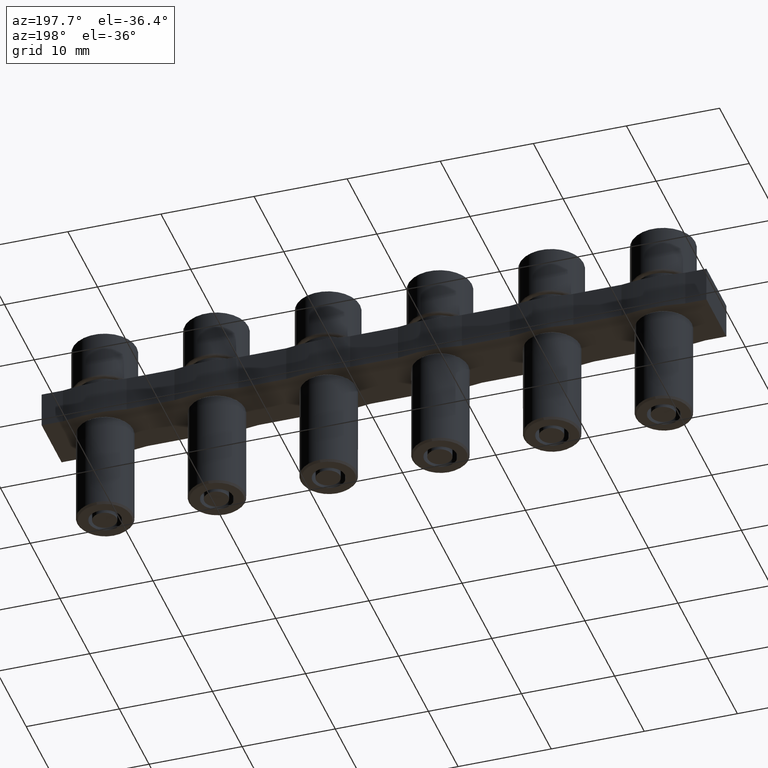
[diagram: clean part render]
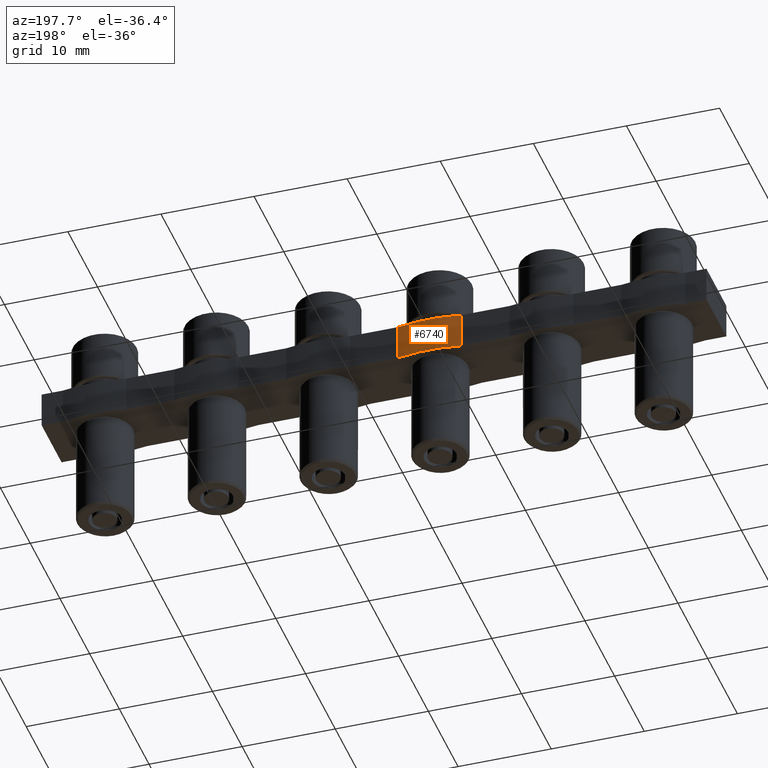
[diagram: same view with one face highlighted and labeled with its STEP entity id]
A machine part, auxiliary view. The second image highlights one B-rep face of the part: STEP entity #6740.
In plain terms, the highlighted cylindrical surface (partial cylindrical patch) has radius 16.95 mm, axis along (0, 0, 1).
Its self-contained STEP definition (entity closure, byte-faithful):
#46 = AXIS2_PLACEMENT_3D ( 'NONE', #8231, #8252, #8228 ) ;
#994 = FACE_OUTER_BOUND ( 'NONE', #3298, .T. ) ;
#1525 = CARTESIAN_POINT ( 'NONE',  ( -27.42673313813508100, 3.350000000000080000, -4.800000000000001600 ) ) ;
#1544 = CARTESIAN_POINT ( 'NONE',  ( -27.42673313813508100, 3.350000000000080000, -0.9000000000000014700 ) ) ;
#1599 = CARTESIAN_POINT ( 'NONE',  ( -20.57326686186491900, 3.350000000000080900, -0.9000000000000014700 ) ) ;
#1606 = CARTESIAN_POINT ( 'NONE',  ( -20.57326686186491900, 3.350000000000080000, -4.800000000000001600 ) ) ;
#2164 = CARTESIAN_POINT ( 'NONE',  ( -23.99999999999999600, -13.25000000000035000, -0.9000000000000014700 ) ) ;
#2275 = DIRECTION ( 'NONE',  ( -0.0000000000000000000, -0.0000000000000000000, -1.000000000000000000 ) ) ;
#2341 = DIRECTION ( 'NONE',  ( 1.000000000000000000, 0.0000000000000000000, 0.0000000000000000000 ) ) ;
#2350 = DIRECTION ( 'NONE',  ( -0.0000000000000000000, -0.0000000000000000000, -1.000000000000000000 ) ) ;
#2354 = CARTESIAN_POINT ( 'NONE',  ( -23.99999999999999600, -13.25000000000035000, -4.800000000000001600 ) ) ;
#3298 = EDGE_LOOP ( 'NONE', ( #4176, #4215, #4197, #4169 ) ) ;
#4169 = ORIENTED_EDGE ( 'NONE', *, *, #5570, .F. ) ;
#4176 = ORIENTED_EDGE ( 'NONE', *, *, #5896, .T. ) ;
#4197 = ORIENTED_EDGE ( 'NONE', *, *, #5689, .T. ) ;
#4215 = ORIENTED_EDGE ( 'NONE', *, *, #5590, .T. ) ;
#4628 = VERTEX_POINT ( 'NONE', #1544 ) ;
#4656 = VERTEX_POINT ( 'NONE', #1525 ) ;
#4692 = VERTEX_POINT ( 'NONE', #1599 ) ;
#4704 = VERTEX_POINT ( 'NONE', #1606 ) ;
#5410 = LINE ( 'NONE', #5500, #7289 ) ;
#5500 = CARTESIAN_POINT ( 'NONE',  ( -20.57326686186491900, 3.350000000000080900, -0.9000000000000014700 ) ) ;
#5506 = DIRECTION ( 'NONE',  ( -0.0000000000000000000, -0.0000000000000000000, -1.000000000000000000 ) ) ;
#5570 = EDGE_CURVE ( 'NONE', #4656, #4704, #7209, .T. ) ;
#5590 = EDGE_CURVE ( 'NONE', #4628, #4692, #7216, .T. ) ;
#5689 = EDGE_CURVE ( 'NONE', #4692, #4704, #5410, .T. ) ;
#5896 = EDGE_CURVE ( 'NONE', #4656, #4628, #6402, .T. ) ;
#6372 = CARTESIAN_POINT ( 'NONE',  ( -27.42673313813508100, 3.350000000000080000, -4.800000000000001600 ) ) ;
#6402 = LINE ( 'NONE', #6372, #7461 ) ;
#6412 = DIRECTION ( 'NONE',  ( 0.0000000000000000000, 0.0000000000000000000, 1.000000000000000000 ) ) ;
#6740 = ADVANCED_FACE ( 'NONE', ( #994 ), #8265, .T. ) ;
#7040 = DIRECTION ( 'NONE',  ( 1.000000000000000000, 0.0000000000000000000, 0.0000000000000000000 ) ) ;
#7209 = CIRCLE ( 'NONE', #7214, 16.95000000000022000 ) ;
#7214 = AXIS2_PLACEMENT_3D ( 'NONE', #2354, #2350, #2341 ) ;
#7216 = CIRCLE ( 'NONE', #7223, 16.95000000000022000 ) ;
#7223 = AXIS2_PLACEMENT_3D ( 'NONE', #2164, #2275, #7040 ) ;
#7289 = VECTOR ( 'NONE', #5506, 1000.000000000000000 ) ;
#7461 = VECTOR ( 'NONE', #6412, 1000.000000000000000 ) ;
#8228 = DIRECTION ( 'NONE',  ( 1.000000000000000000, 0.0000000000000000000, 0.0000000000000000000 ) ) ;
#8231 = CARTESIAN_POINT ( 'NONE',  ( -23.99999999999999600, -13.25000000000035000, -9.302499305941093900 ) ) ;
#8252 = DIRECTION ( 'NONE',  ( 0.0000000000000000000, 0.0000000000000000000, 1.000000000000000000 ) ) ;
#8265 = CYLINDRICAL_SURFACE ( 'NONE', #46, 16.95000000000022000 ) ;